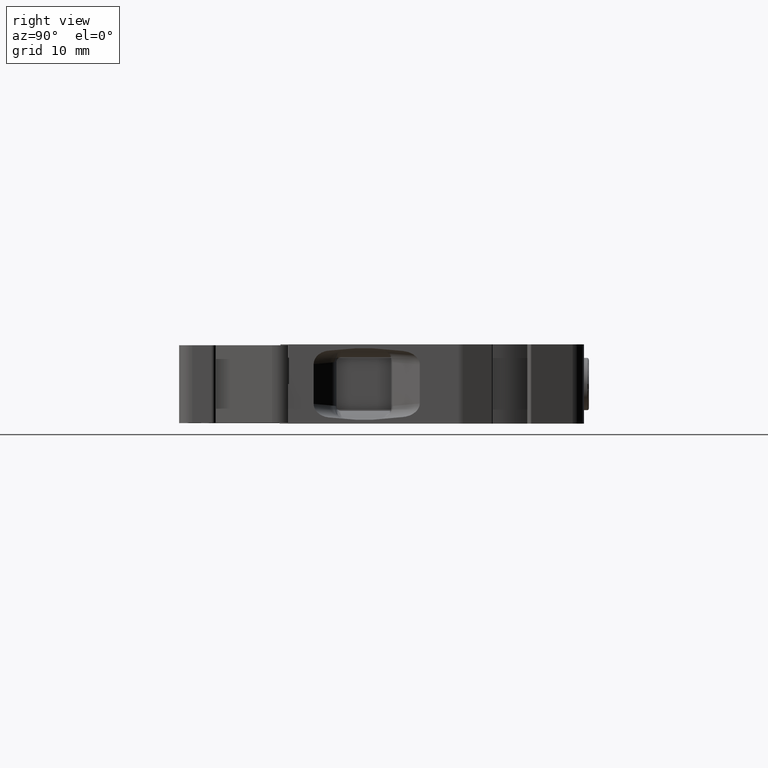
[diagram: clean part render]
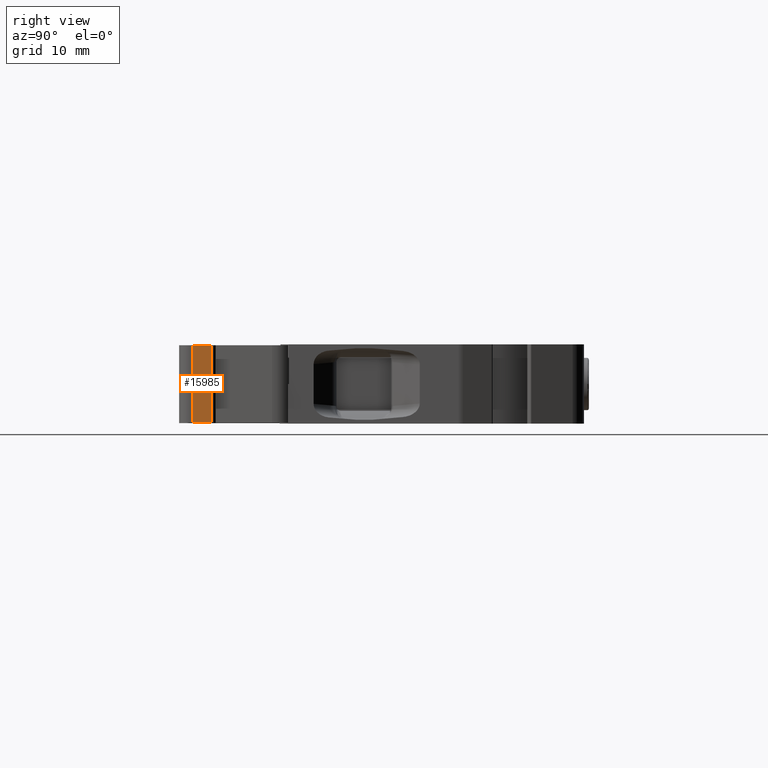
[diagram: same view with one face highlighted and labeled with its STEP entity id]
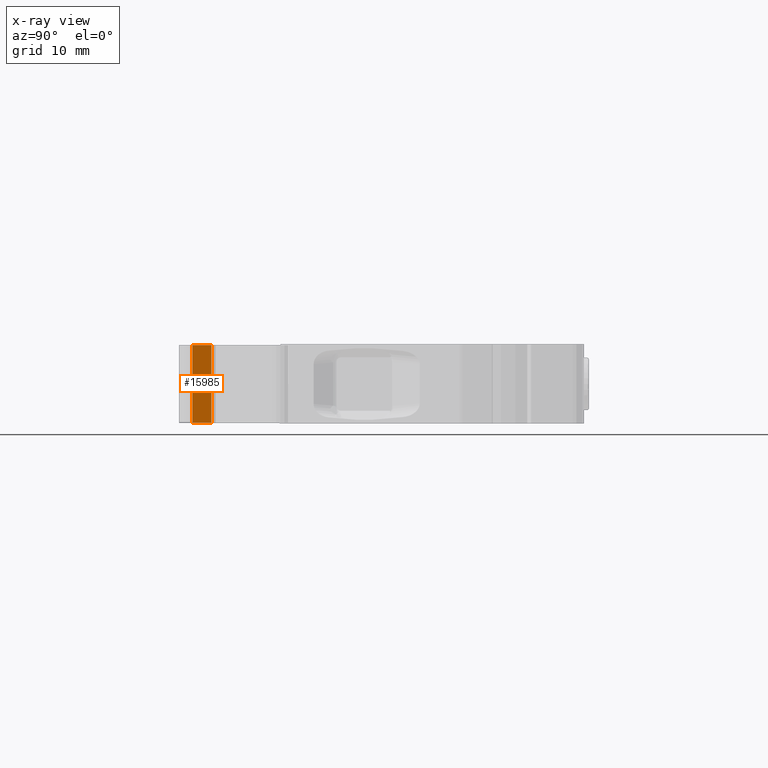
[diagram: x-ray of the same camera — body ghosted, the highlighted face saturated]
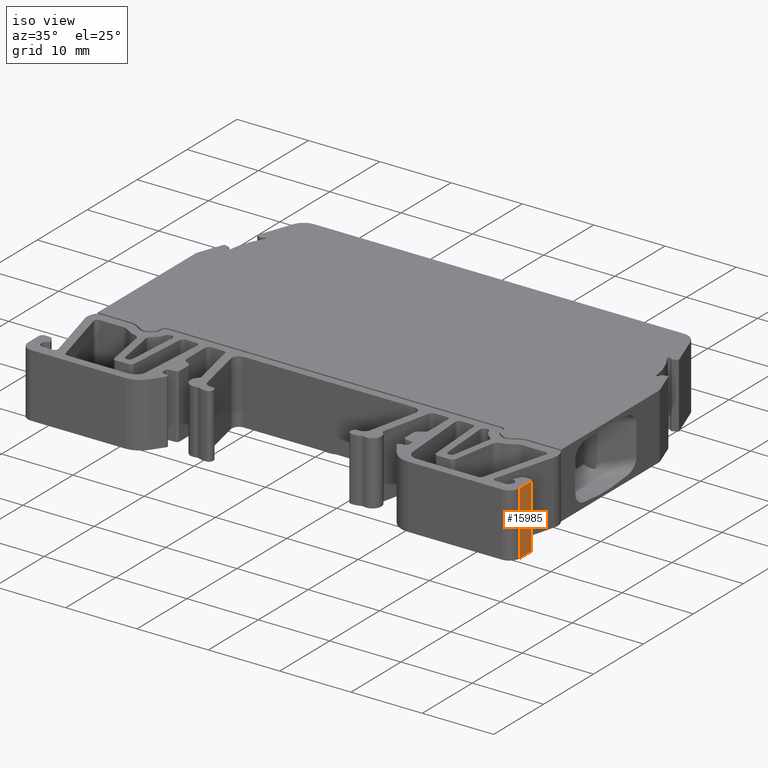
[diagram: same view with one face highlighted and labeled with its STEP entity id]
A machine part, right view. The second image highlights one B-rep face of the part: STEP entity #15985.
The next image is the same camera in x-ray: the body ghosted, the highlighted face saturated — about 0% of this face is hidden behind the body in this view.
A second angle (iso view) of the same face is appended — the face is thin or edge-on in the first view.
In plain terms, the highlighted planar face has unit normal (1, 0, -0).
Its self-contained STEP definition (entity closure, byte-faithful):
#468 = LINE ( 'NONE', #470, #1157 ) ;
#470 = CARTESIAN_POINT ( 'NONE',  ( 506.7256107749057600, 100.7396890831939800, 35.79999999999999700 ) ) ;
#483 = DIRECTION ( 'NONE',  ( 0.0000000000000000000, 0.0000000000000000000, 1.000000000000000000 ) ) ;
#973 = CARTESIAN_POINT ( 'NONE',  ( 506.7256107749058700, 98.53968781454578600, 35.85000000000000100 ) ) ;
#1045 = CARTESIAN_POINT ( 'NONE',  ( 506.7256107749058700, 98.53968781454578600, 26.95000000000000300 ) ) ;
#1157 = VECTOR ( 'NONE', #483, 1000.000000000000000 ) ;
#1286 = VECTOR ( 'NONE', #8901, 1000.000000000000000 ) ;
#1818 = AXIS2_PLACEMENT_3D ( 'NONE', #5245, #5258, #5225 ) ;
#2708 = EDGE_CURVE ( 'NONE', #6149, #6253, #13470, .T. ) ;
#2726 = EDGE_CURVE ( 'NONE', #6253, #4047, #13485, .T. ) ;
#3806 = EDGE_LOOP ( 'NONE', ( #6715, #6721, #6752, #6731 ) ) ;
#4047 = VERTEX_POINT ( 'NONE', #10685 ) ;
#4055 = VERTEX_POINT ( 'NONE', #10758 ) ;
#5225 = DIRECTION ( 'NONE',  ( -2.523232691832355200E-014, 1.000000000000000000, 0.0000000000000000000 ) ) ;
#5234 = FACE_OUTER_BOUND ( 'NONE', #3806, .T. ) ;
#5245 = CARTESIAN_POINT ( 'NONE',  ( 506.7256107749070700, 49.00642838281621000, 35.79999999999999700 ) ) ;
#5251 = PLANE ( 'NONE',  #1818 ) ;
#5258 = DIRECTION ( 'NONE',  ( 1.000000000000000000, 2.523232691832355200E-014, -0.0000000000000000000 ) ) ;
#6149 = VERTEX_POINT ( 'NONE', #973 ) ;
#6253 = VERTEX_POINT ( 'NONE', #1045 ) ;
#6715 = ORIENTED_EDGE ( 'NONE', *, *, #2726, .T. ) ;
#6721 = ORIENTED_EDGE ( 'NONE', *, *, #15355, .T. ) ;
#6731 = ORIENTED_EDGE ( 'NONE', *, *, #2708, .T. ) ;
#6752 = ORIENTED_EDGE ( 'NONE', *, *, #15464, .T. ) ;
#8901 = DIRECTION ( 'NONE',  ( 2.523232691832355200E-014, -1.000000000000000000, 0.0000000000000000000 ) ) ;
#8902 = LINE ( 'NONE', #8918, #1286 ) ;
#8918 = CARTESIAN_POINT ( 'NONE',  ( 506.7256107749070700, 49.00642838281621000, 35.85000000000000100 ) ) ;
#10685 = CARTESIAN_POINT ( 'NONE',  ( 506.7256107749057600, 100.7396890831939800, 26.95000000000000300 ) ) ;
#10758 = CARTESIAN_POINT ( 'NONE',  ( 506.7256107749057600, 100.7396890831939800, 35.85000000000000100 ) ) ;
#11488 = VECTOR ( 'NONE', #13467, 1000.000000000000000 ) ;
#11499 = VECTOR ( 'NONE', #13536, 1000.000000000000000 ) ;
#13467 = DIRECTION ( 'NONE',  ( -0.0000000000000000000, -0.0000000000000000000, -1.000000000000000000 ) ) ;
#13469 = CARTESIAN_POINT ( 'NONE',  ( 506.7256107749058700, 98.53968781454578600, 35.79999999999999700 ) ) ;
#13470 = LINE ( 'NONE', #13469, #11488 ) ;
#13485 = LINE ( 'NONE', #13496, #11499 ) ;
#13496 = CARTESIAN_POINT ( 'NONE',  ( 506.7256107749070700, 49.00642838281618900, 26.95000000000000300 ) ) ;
#13536 = DIRECTION ( 'NONE',  ( -2.523232691832355200E-014, 1.000000000000000000, 0.0000000000000000000 ) ) ;
#15355 = EDGE_CURVE ( 'NONE', #4047, #4055, #468, .T. ) ;
#15464 = EDGE_CURVE ( 'NONE', #4055, #6149, #8902, .T. ) ;
#15985 = ADVANCED_FACE ( 'NONE', ( #5234 ), #5251, .T. ) ;